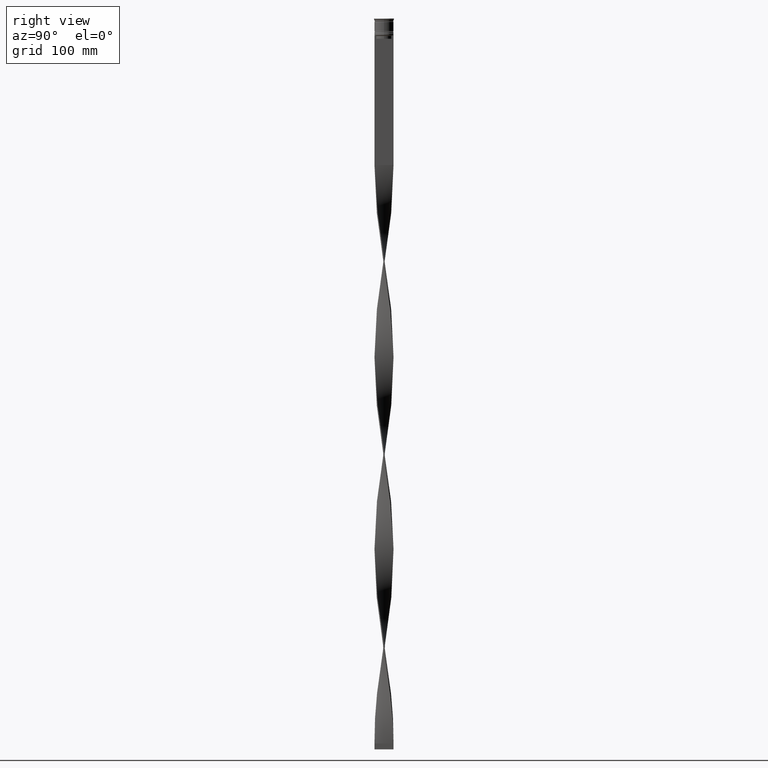
[diagram: clean part render]
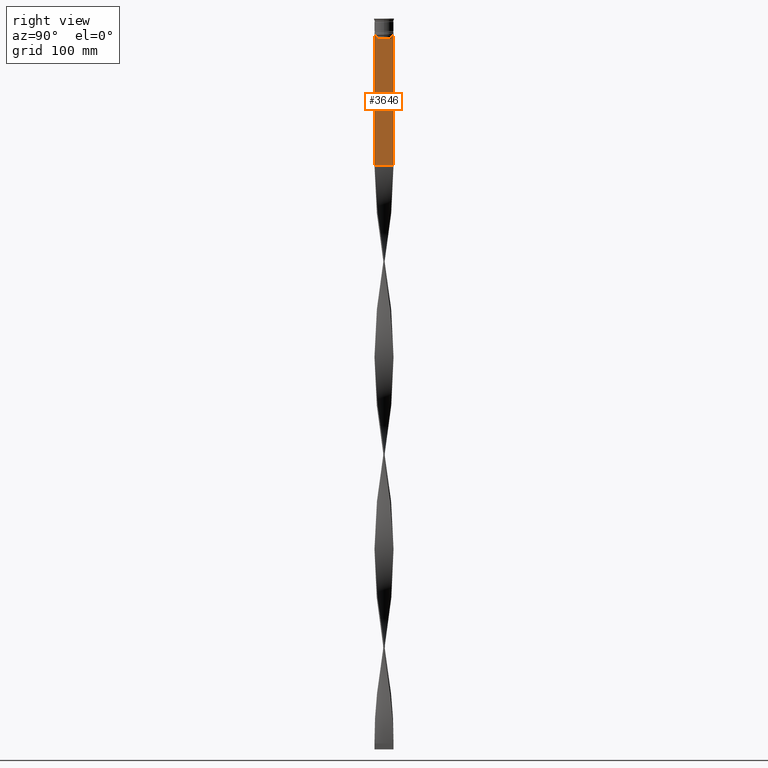
[diagram: same view with one face highlighted and labeled with its STEP entity id]
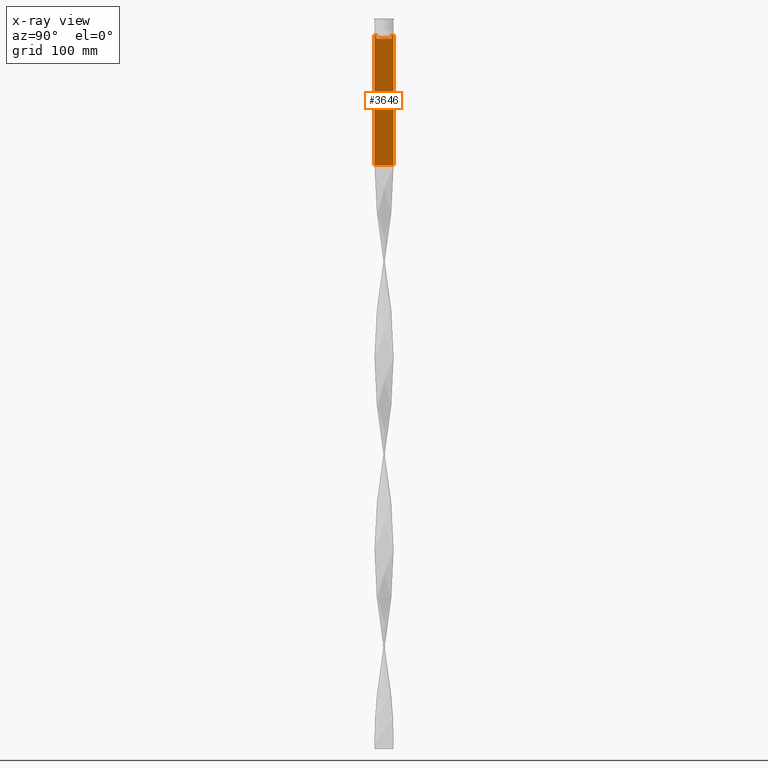
[diagram: x-ray of the same camera — body ghosted, the highlighted face saturated]
A machine part, right view. The second image highlights one B-rep face of the part: STEP entity #3646.
The next image is the same camera in x-ray: the body ghosted, the highlighted face saturated — about 0% of this face is hidden behind the body in this view.
In plain terms, the highlighted planar face has unit normal (-1, 0, 0).
Its self-contained STEP definition (entity closure, byte-faithful):
#2 = VERTEX_POINT ( 'NONE', #3006 ) ;
#9 = DIRECTION ( 'NONE',  ( -0.000000000000000000, -0.000000000000000000, 1.000000000000000000 ) ) ;
#26 = B_SPLINE_CURVE_WITH_KNOTS ( 'NONE', 3,
 ( #2736, #3769, #343, #1024 ),
 .UNSPECIFIED., .F., .F.,
 ( 4, 4 ),
 ( 0.02996184199614751464, 0.03067452609193705923 ),
 .UNSPECIFIED. ) ;
#39 = DIRECTION ( 'NONE',  ( -1.000000000000000000, 0.000000000000000000, 0.000000000000000000 ) ) ;
#48 = CARTESIAN_POINT ( 'NONE',  ( 0.5000000000000001110, -8.000000000000003553, -14.00000000000000178 ) ) ;
#74 = ORIENTED_EDGE ( 'NONE', *, *, #2586, .T. ) ;
#314 = LINE ( 'NONE', #2396, #3488 ) ;
#343 = CARTESIAN_POINT ( 'NONE',  ( 0.5000000000000001110, -6.714736947305993908, -14.16668390685738821 ) ) ;
#386 = DIRECTION ( 'NONE',  ( 0.000000000000000000, -1.000000000000000000, 0.000000000000000000 ) ) ;
#398 = EDGE_CURVE ( 'NONE', #1229, #731, #2448, .T. ) ;
#407 = DIRECTION ( 'NONE',  ( 0.000000000000000000, 0.000000000000000000, -1.000000000000000000 ) ) ;
#452 = EDGE_CURVE ( 'NONE', #3091, #2, #3778, .T. ) ;
#487 = LINE ( 'NONE', #3515, #3928 ) ;
#511 = CARTESIAN_POINT ( 'NONE',  ( 0.5000000000000001110, 7.884161337770806632, -14.00000000000000178 ) ) ;
#548 = LINE ( 'NONE', #1184, #3133 ) ;
#668 = VERTEX_POINT ( 'NONE', #3496 ) ;
#675 = EDGE_CURVE ( 'NONE', #1160, #1173, #4120, .T. ) ;
#676 = CARTESIAN_POINT ( 'NONE',  ( 0.5000000000000001110, 6.881860213634098500, -14.00000000000000178 ) ) ;
#728 = LINE ( 'NONE', #3475, #2994 ) ;
#731 = VERTEX_POINT ( 'NONE', #511 ) ;
#845 = ORIENTED_EDGE ( 'NONE', *, *, #452, .T. ) ;
#867 = DIRECTION ( 'NONE',  ( 0.000000000000000000, 0.000000000000000000, -1.000000000000000000 ) ) ;
#874 = CARTESIAN_POINT ( 'NONE',  ( 0.5000000000000001110, 6.380438856379708312, -14.50000000000000000 ) ) ;
#1024 = CARTESIAN_POINT ( 'NONE',  ( 0.5000000000000001110, -6.881860213634098500, -14.00000000000000178 ) ) ;
#1033 = DIRECTION ( 'NONE',  ( 0.000000000000000000, -1.000000000000000000, 0.000000000000000000 ) ) ;
#1066 = DIRECTION ( 'NONE',  ( 0.000000000000000000, -1.000000000000000000, 0.000000000000000000 ) ) ;
#1095 = EDGE_CURVE ( 'NONE', #4302, #668, #4138, .T. ) ;
#1106 = VERTEX_POINT ( 'NONE', #676 ) ;
#1160 = VERTEX_POINT ( 'NONE', #3107 ) ;
#1170 = EDGE_CURVE ( 'NONE', #1892, #1539, #314, .T. ) ;
#1173 = VERTEX_POINT ( 'NONE', #3489 ) ;
#1184 = CARTESIAN_POINT ( 'NONE',  ( 0.5000000000000001110, 7.999999999999996447, 2.031219541881394530 ) ) ;
#1229 = VERTEX_POINT ( 'NONE', #4181 ) ;
#1256 = CARTESIAN_POINT ( 'NONE',  ( 0.5000000000000001110, -8.000000000000003553, -123.0000000000000000 ) ) ;
#1308 = ORIENTED_EDGE ( 'NONE', *, *, #675, .T. ) ;
#1309 = CARTESIAN_POINT ( 'NONE',  ( 0.5000000000000001110, -6.380438856379708312, -17.00000000000000000 ) ) ;
#1359 = CARTESIAN_POINT ( 'NONE',  ( 0.5000000000000001110, -6.881860213634098500, -14.00000000000000178 ) ) ;
#1443 = EDGE_CURVE ( 'NONE', #1173, #4302, #487, .T. ) ;
#1454 = EDGE_LOOP ( 'NONE', ( #3227, #1950, #1308, #3530, #2039, #2624, #845, #74, #1942, #1815, #1565, #2369 ) ) ;
#1481 = VECTOR ( 'NONE', #2237, 1000.000000000000000 ) ;
#1539 = VERTEX_POINT ( 'NONE', #1256 ) ;
#1565 = ORIENTED_EDGE ( 'NONE', *, *, #2063, .F. ) ;
#1610 = EDGE_CURVE ( 'NONE', #1106, #1160, #3328, .T. ) ;
#1613 = CARTESIAN_POINT ( 'NONE',  ( 0.5000000000000001110, 6.547597841304911626, -14.33335192459222718 ) ) ;
#1634 = VECTOR ( 'NONE', #1066, 1000.000000000000000 ) ;
#1726 = CARTESIAN_POINT ( 'NONE',  ( 0.5000000000000001110, 6.380438856379708312, 0.000000000000000000 ) ) ;
#1756 = CARTESIAN_POINT ( 'NONE',  ( 0.5000000000000001110, -8.000000000000003553, -14.00000000000000178 ) ) ;
#1815 = ORIENTED_EDGE ( 'NONE', *, *, #2831, .T. ) ;
#1892 = VERTEX_POINT ( 'NONE', #1756 ) ;
#1942 = ORIENTED_EDGE ( 'NONE', *, *, #1170, .T. ) ;
#1950 = ORIENTED_EDGE ( 'NONE', *, *, #1610, .T. ) ;
#2004 = AXIS2_PLACEMENT_3D ( 'NONE', #3468, #39, #2756 ) ;
#2039 = ORIENTED_EDGE ( 'NONE', *, *, #1095, .T. ) ;
#2063 = EDGE_CURVE ( 'NONE', #1229, #3672, #548, .T. ) ;
#2237 = DIRECTION ( 'NONE',  ( 0.000000000000000000, 1.000000000000000000, 0.000000000000000000 ) ) ;
#2369 = ORIENTED_EDGE ( 'NONE', *, *, #398, .T. ) ;
#2396 = CARTESIAN_POINT ( 'NONE',  ( 0.5000000000000001110, -8.000000000000003553, 2.031219541881394530 ) ) ;
#2448 = LINE ( 'NONE', #3842, #3782 ) ;
#2476 = FACE_OUTER_BOUND ( 'NONE', #1454, .T. ) ;
#2553 = CARTESIAN_POINT ( 'NONE',  ( 0.5000000000000001110, -8.000000000000003553, -123.0000000000000000 ) ) ;
#2586 = EDGE_CURVE ( 'NONE', #2, #1892, #728, .T. ) ;
#2624 = ORIENTED_EDGE ( 'NONE', *, *, #3138, .T. ) ;
#2736 = CARTESIAN_POINT ( 'NONE',  ( 0.5000000000000001110, -6.380438856379708312, -14.50000000000000000 ) ) ;
#2756 = DIRECTION ( 'NONE',  ( 0.000000000000000000, 0.000000000000000000, 1.000000000000000000 ) ) ;
#2814 = CARTESIAN_POINT ( 'NONE',  ( 0.5000000000000001110, -8.000000000000003553, -14.00000000000000178 ) ) ;
#2831 = EDGE_CURVE ( 'NONE', #1539, #3672, #3954, .T. ) ;
#2916 = VECTOR ( 'NONE', #9, 1000.000000000000000 ) ;
#2994 = VECTOR ( 'NONE', #386, 1000.000000000000000 ) ;
#3006 = CARTESIAN_POINT ( 'NONE',  ( 0.5000000000000001110, -7.884161337770806632, -14.00000000000000178 ) ) ;
#3056 = VECTOR ( 'NONE', #3438, 1000.000000000000000 ) ;
#3091 = VERTEX_POINT ( 'NONE', #1359 ) ;
#3107 = CARTESIAN_POINT ( 'NONE',  ( 0.5000000000000001110, 6.380438856379708312, -14.50000000000000000 ) ) ;
#3133 = VECTOR ( 'NONE', #867, 1000.000000000000000 ) ;
#3138 = EDGE_CURVE ( 'NONE', #668, #3091, #26, .T. ) ;
#3227 = ORIENTED_EDGE ( 'NONE', *, *, #3514, .T. ) ;
#3235 = DIRECTION ( 'NONE',  ( 0.000000000000000000, -1.000000000000000000, 0.000000000000000000 ) ) ;
#3328 = B_SPLINE_CURVE_WITH_KNOTS ( 'NONE', 3,
 ( #3617, #3647, #1613, #874 ),
 .UNSPECIFIED., .F., .F.,
 ( 4, 4 ),
 ( 0.01172465562756038263, 0.01243276816391822651 ),
 .UNSPECIFIED. ) ;
#3399 = CARTESIAN_POINT ( 'NONE',  ( 0.5000000000000001110, -6.380438856379708312, 0.000000000000000000 ) ) ;
#3421 = DIRECTION ( 'NONE',  ( 0.000000000000000000, 0.000000000000000000, -1.000000000000000000 ) ) ;
#3425 = PLANE ( 'NONE',  #2004 ) ;
#3438 = DIRECTION ( 'NONE',  ( 0.000000000000000000, -1.000000000000000000, 0.000000000000000000 ) ) ;
#3449 = CARTESIAN_POINT ( 'NONE',  ( 0.5000000000000001110, 7.999999999999996447, -123.0000000000000000 ) ) ;
#3468 = CARTESIAN_POINT ( 'NONE',  ( 0.5000000000000001110, -8.000000000000003553, 2.031219541881394530 ) ) ;
#3475 = CARTESIAN_POINT ( 'NONE',  ( 0.5000000000000001110, -8.000000000000003553, -14.00000000000000178 ) ) ;
#3488 = VECTOR ( 'NONE', #3421, 1000.000000000000000 ) ;
#3489 = CARTESIAN_POINT ( 'NONE',  ( 0.5000000000000001110, 6.380438856379708312, -17.00000000000000000 ) ) ;
#3496 = CARTESIAN_POINT ( 'NONE',  ( 0.5000000000000001110, -6.380438856379708312, -14.50000000000000000 ) ) ;
#3514 = EDGE_CURVE ( 'NONE', #731, #1106, #4183, .T. ) ;
#3515 = CARTESIAN_POINT ( 'NONE',  ( 0.5000000000000001110, 6.399999999999999467, -17.00000000000000000 ) ) ;
#3530 = ORIENTED_EDGE ( 'NONE', *, *, #1443, .T. ) ;
#3617 = CARTESIAN_POINT ( 'NONE',  ( 0.5000000000000001110, 6.881860213634098500, -14.00000000000000178 ) ) ;
#3630 = VECTOR ( 'NONE', #407, 1000.000000000000000 ) ;
#3646 = ADVANCED_FACE ( 'NONE', ( #2476 ), #3425, .F. ) ;
#3647 = CARTESIAN_POINT ( 'NONE',  ( 0.5000000000000001110, 6.714736947114692711, -14.16668390704818847 ) ) ;
#3672 = VERTEX_POINT ( 'NONE', #3449 ) ;
#3769 = CARTESIAN_POINT ( 'NONE',  ( 0.5000000000000001110, -6.547597841511247019, -14.33335192438652150 ) ) ;
#3778 = LINE ( 'NONE', #48, #3056 ) ;
#3782 = VECTOR ( 'NONE', #1033, 1000.000000000000000 ) ;
#3842 = CARTESIAN_POINT ( 'NONE',  ( 0.5000000000000001110, -8.000000000000003553, -14.00000000000000178 ) ) ;
#3928 = VECTOR ( 'NONE', #3235, 1000.000000000000000 ) ;
#3954 = LINE ( 'NONE', #2553, #1481 ) ;
#4120 = LINE ( 'NONE', #1726, #3630 ) ;
#4138 = LINE ( 'NONE', #3399, #2916 ) ;
#4181 = CARTESIAN_POINT ( 'NONE',  ( 0.5000000000000001110, 7.999999999999996447, -14.00000000000000178 ) ) ;
#4183 = LINE ( 'NONE', #2814, #1634 ) ;
#4302 = VERTEX_POINT ( 'NONE', #1309 ) ;